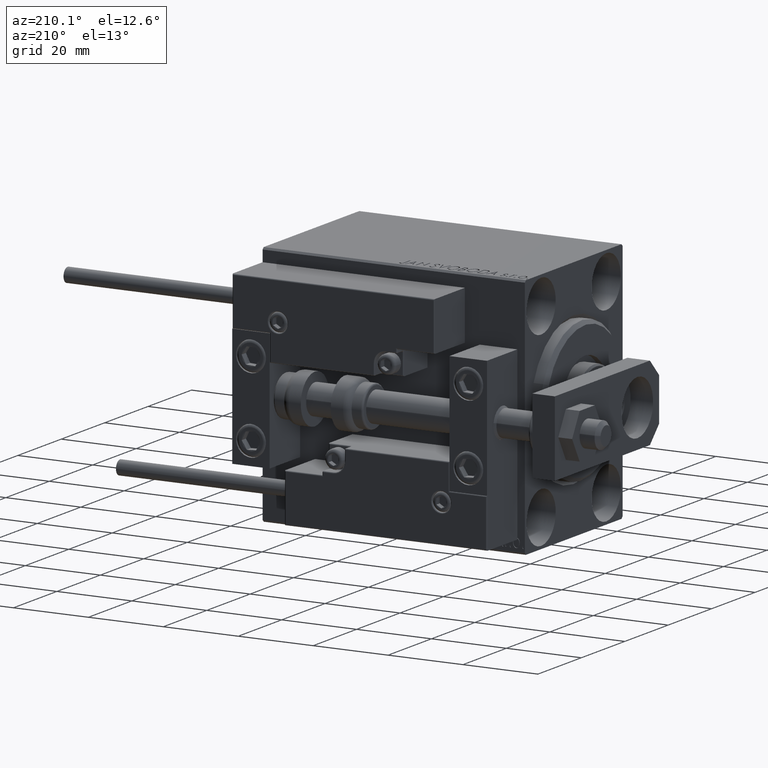
[diagram: clean part render]
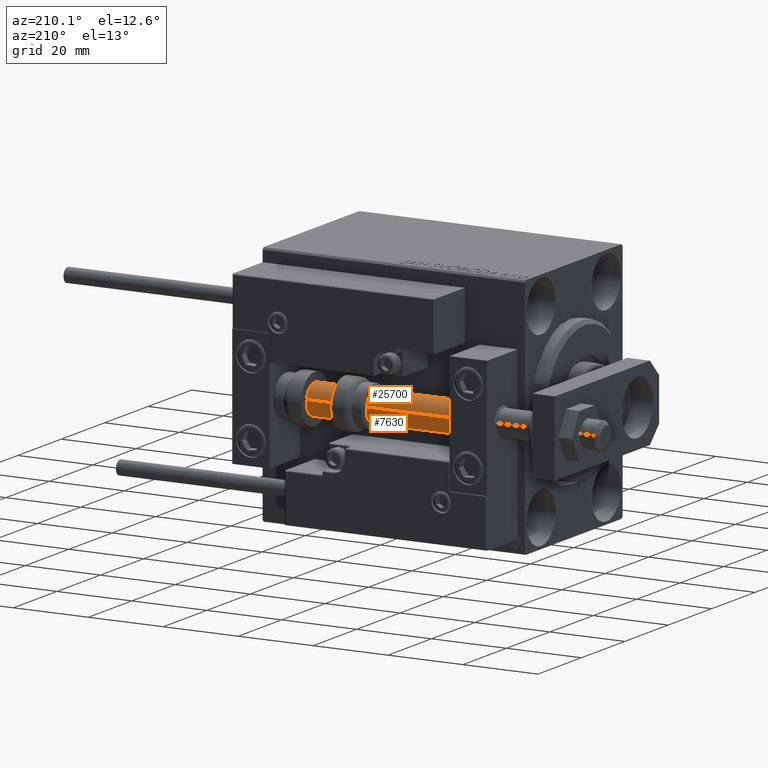
[diagram: same view with one multi-face feature highlighted, each face labeled with its STEP entity id]
A machine part, auxiliary view. The highlighted faces form ONE feature: a constant-radius fillet chain: 2 tangent blend faces with common blend radius 4 mm. The faces share edges in the B-rep.
Their STEP definitions:
[1] entity #25700 (Cylinder):
#1428 = CYLINDRICAL_SURFACE ( 'NONE', #35608, 4.000000000000000000 ) ;
#2119 = EDGE_CURVE ( 'NONE', #47579, #36088, #37244, .T. ) ;
#3888 = CARTESIAN_POINT ( 'NONE',  ( 0.000000000000000000, 0.000000000000000000, 70.00000000000000000 ) ) ;
#5248 = DIRECTION ( 'NONE',  ( -0.000000000000000000, -0.000000000000000000, -1.000000000000000000 ) ) ;
#5262 = DIRECTION ( 'NONE',  ( -0.000000000000000000, -0.000000000000000000, -1.000000000000000000 ) ) ;
#9260 = CARTESIAN_POINT ( 'NONE',  ( 4.000000000000000000, 4.898587196589412829E-16, 2.000000000000029310 ) ) ;
#11612 = VERTEX_POINT ( 'NONE', #17239 ) ;
#17239 = CARTESIAN_POINT ( 'NONE',  ( 4.000000000000000000, 4.898587196589412829E-16, 70.00000000000000000 ) ) ;
#19675 = EDGE_CURVE ( 'NONE', #11612, #45666, #21578, .T. ) ;
#20405 = CIRCLE ( 'NONE', #40721, 4.000000000000000000 ) ;
#21210 = EDGE_CURVE ( 'NONE', #45666, #36088, #27332, .T. ) ;
#21578 = LINE ( 'NONE', #48778, #47534 ) ;
#23270 = AXIS2_PLACEMENT_3D ( 'NONE', #47403, #28850, #28593 ) ;
#25700 = ADVANCED_FACE ( 'NONE', ( #40375 ), #1428, .T. ) ;
#27332 = CIRCLE ( 'NONE', #23270, 4.000000000000000000 ) ;
#28414 = DIRECTION ( 'NONE',  ( -1.000000000000000000, 0.000000000000000000, 0.000000000000000000 ) ) ;
#28593 = DIRECTION ( 'NONE',  ( 1.000000000000000000, 0.000000000000000000, 0.000000000000000000 ) ) ;
#28850 = DIRECTION ( 'NONE',  ( -0.000000000000000000, -0.000000000000000000, 1.000000000000000000 ) ) ;
#30626 = DIRECTION ( 'NONE',  ( 1.000000000000000000, 0.000000000000000000, 0.000000000000000000 ) ) ;
#30799 = ORIENTED_EDGE ( 'NONE', *, *, #21210, .T. ) ;
#31982 = CARTESIAN_POINT ( 'NONE',  ( 0.000000000000000000, 0.000000000000000000, 70.00000000000000000 ) ) ;
#33673 = CARTESIAN_POINT ( 'NONE',  ( -4.000000000000000000, 0.000000000000000000, 70.00000000000000000 ) ) ;
#34693 = DIRECTION ( 'NONE',  ( 0.000000000000000000, 0.000000000000000000, 1.000000000000000000 ) ) ;
#35608 = AXIS2_PLACEMENT_3D ( 'NONE', #31982, #5248, #28414 ) ;
#35694 = EDGE_LOOP ( 'NONE', ( #37309, #42105, #30799, #35815 ) ) ;
#35815 = ORIENTED_EDGE ( 'NONE', *, *, #2119, .F. ) ;
#36088 = VERTEX_POINT ( 'NONE', #44082 ) ;
#37244 = LINE ( 'NONE', #33673, #43154 ) ;
#37309 = ORIENTED_EDGE ( 'NONE', *, *, #40778, .F. ) ;
#40375 = FACE_OUTER_BOUND ( 'NONE', #35694, .T. ) ;
#40721 = AXIS2_PLACEMENT_3D ( 'NONE', #3888, #34693, #30626 ) ;
#40778 = EDGE_CURVE ( 'NONE', #11612, #47579, #20405, .T. ) ;
#42105 = ORIENTED_EDGE ( 'NONE', *, *, #19675, .T. ) ;
#43154 = VECTOR ( 'NONE', #48932, 1000.000000000000000 ) ;
#44082 = CARTESIAN_POINT ( 'NONE',  ( -4.000000000000000000, 0.000000000000000000, 2.000000000000029310 ) ) ;
#45666 = VERTEX_POINT ( 'NONE', #9260 ) ;
#47403 = CARTESIAN_POINT ( 'NONE',  ( 0.000000000000000000, 0.000000000000000000, 2.000000000000029310 ) ) ;
#47534 = VECTOR ( 'NONE', #5262, 1000.000000000000000 ) ;
#47579 = VERTEX_POINT ( 'NONE', #49961 ) ;
#48778 = CARTESIAN_POINT ( 'NONE',  ( 4.000000000000000000, 4.898587196589412829E-16, 70.00000000000000000 ) ) ;
#48932 = DIRECTION ( 'NONE',  ( -0.000000000000000000, -0.000000000000000000, -1.000000000000000000 ) ) ;
#49961 = CARTESIAN_POINT ( 'NONE',  ( -4.000000000000000000, 0.000000000000000000, 70.00000000000000000 ) ) ;
[2] entity #7630 (Cylinder):
#515 = ORIENTED_EDGE ( 'NONE', *, *, #14757, .T. ) ;
#675 = DIRECTION ( 'NONE',  ( -1.000000000000000000, 0.000000000000000000, 0.000000000000000000 ) ) ;
#2119 = EDGE_CURVE ( 'NONE', #47579, #36088, #37244, .T. ) ;
#2373 = DIRECTION ( 'NONE',  ( -0.000000000000000000, -0.000000000000000000, 1.000000000000000000 ) ) ;
#4255 = FACE_OUTER_BOUND ( 'NONE', #37748, .T. ) ;
#5262 = DIRECTION ( 'NONE',  ( -0.000000000000000000, -0.000000000000000000, -1.000000000000000000 ) ) ;
#6688 = CARTESIAN_POINT ( 'NONE',  ( 0.000000000000000000, 0.000000000000000000, 2.000000000000029310 ) ) ;
#7630 = ADVANCED_FACE ( 'NONE', ( #4255 ), #31989, .T. ) ;
#9226 = AXIS2_PLACEMENT_3D ( 'NONE', #6688, #2373, #33431 ) ;
#9260 = CARTESIAN_POINT ( 'NONE',  ( 4.000000000000000000, 4.898587196589412829E-16, 2.000000000000029310 ) ) ;
#11211 = AXIS2_PLACEMENT_3D ( 'NONE', #14768, #15500, #34605 ) ;
#11568 = AXIS2_PLACEMENT_3D ( 'NONE', #36059, #43923, #675 ) ;
#11612 = VERTEX_POINT ( 'NONE', #17239 ) ;
#14563 = CIRCLE ( 'NONE', #11211, 4.000000000000000000 ) ;
#14757 = EDGE_CURVE ( 'NONE', #36088, #45666, #29569, .T. ) ;
#14768 = CARTESIAN_POINT ( 'NONE',  ( 0.000000000000000000, 0.000000000000000000, 70.00000000000000000 ) ) ;
#15500 = DIRECTION ( 'NONE',  ( 0.000000000000000000, 0.000000000000000000, 1.000000000000000000 ) ) ;
#17239 = CARTESIAN_POINT ( 'NONE',  ( 4.000000000000000000, 4.898587196589412829E-16, 70.00000000000000000 ) ) ;
#18711 = ORIENTED_EDGE ( 'NONE', *, *, #19675, .F. ) ;
#19675 = EDGE_CURVE ( 'NONE', #11612, #45666, #21578, .T. ) ;
#21578 = LINE ( 'NONE', #48778, #47534 ) ;
#24212 = ORIENTED_EDGE ( 'NONE', *, *, #2119, .T. ) ;
#28423 = EDGE_CURVE ( 'NONE', #47579, #11612, #14563, .T. ) ;
#29569 = CIRCLE ( 'NONE', #9226, 4.000000000000000000 ) ;
#31989 = CYLINDRICAL_SURFACE ( 'NONE', #11568, 4.000000000000000000 ) ;
#32279 = ORIENTED_EDGE ( 'NONE', *, *, #28423, .F. ) ;
#33431 = DIRECTION ( 'NONE',  ( 1.000000000000000000, 0.000000000000000000, 0.000000000000000000 ) ) ;
#33673 = CARTESIAN_POINT ( 'NONE',  ( -4.000000000000000000, 0.000000000000000000, 70.00000000000000000 ) ) ;
#34605 = DIRECTION ( 'NONE',  ( 1.000000000000000000, 0.000000000000000000, 0.000000000000000000 ) ) ;
#36059 = CARTESIAN_POINT ( 'NONE',  ( 0.000000000000000000, 0.000000000000000000, 70.00000000000000000 ) ) ;
#36088 = VERTEX_POINT ( 'NONE', #44082 ) ;
#37244 = LINE ( 'NONE', #33673, #43154 ) ;
#37748 = EDGE_LOOP ( 'NONE', ( #18711, #32279, #24212, #515 ) ) ;
#43154 = VECTOR ( 'NONE', #48932, 1000.000000000000000 ) ;
#43923 = DIRECTION ( 'NONE',  ( -0.000000000000000000, -0.000000000000000000, -1.000000000000000000 ) ) ;
#44082 = CARTESIAN_POINT ( 'NONE',  ( -4.000000000000000000, 0.000000000000000000, 2.000000000000029310 ) ) ;
#45666 = VERTEX_POINT ( 'NONE', #9260 ) ;
#47534 = VECTOR ( 'NONE', #5262, 1000.000000000000000 ) ;
#47579 = VERTEX_POINT ( 'NONE', #49961 ) ;
#48778 = CARTESIAN_POINT ( 'NONE',  ( 4.000000000000000000, 4.898587196589412829E-16, 70.00000000000000000 ) ) ;
#48932 = DIRECTION ( 'NONE',  ( -0.000000000000000000, -0.000000000000000000, -1.000000000000000000 ) ) ;
#49961 = CARTESIAN_POINT ( 'NONE',  ( -4.000000000000000000, 0.000000000000000000, 70.00000000000000000 ) ) ;